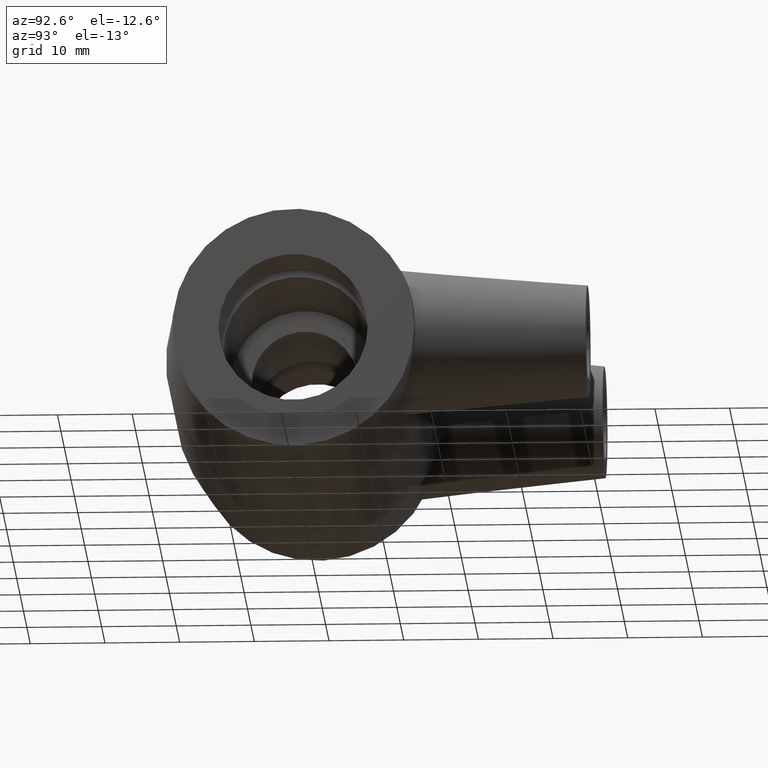
[diagram: clean part render]
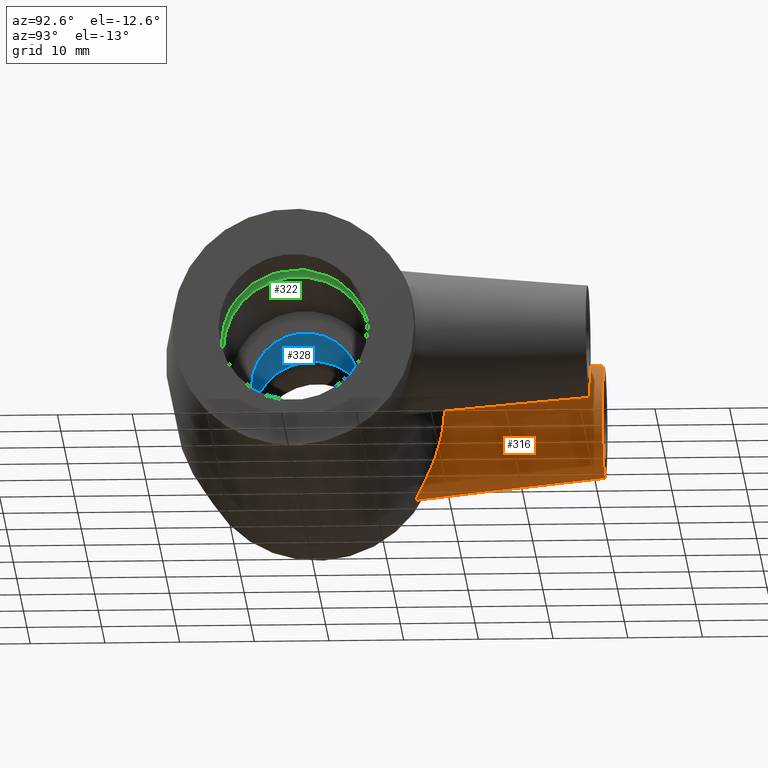
[diagram: same view with three faces highlighted in distinct colors, each labeled with its STEP entity id]
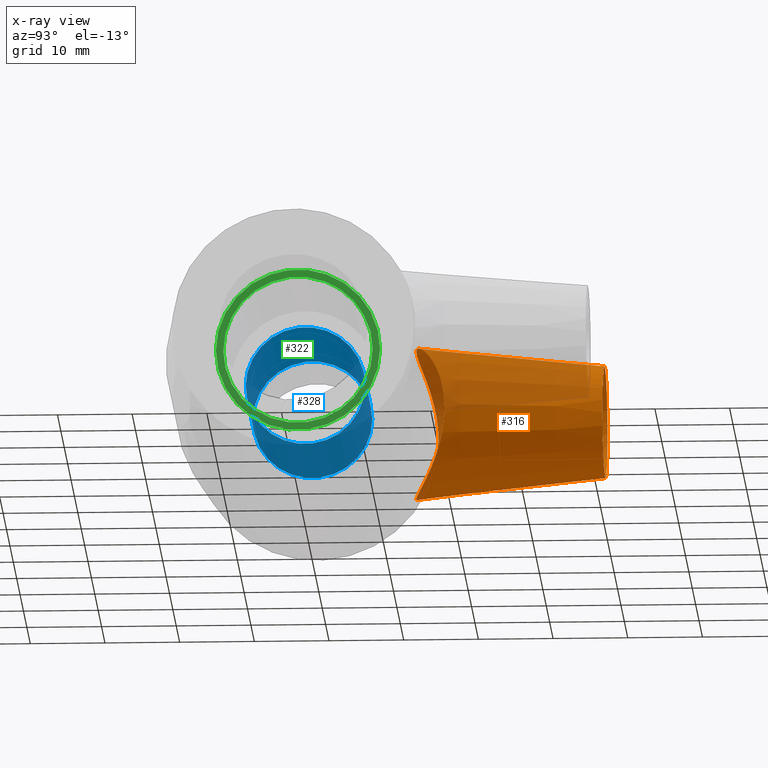
[diagram: x-ray of the same camera — body ghosted, the three highlighted faces saturated]
A machine part, auxiliary view with three faces highlighted in distinct colors.
The next image is the same camera in x-ray (body ghosted, the three faces saturated) — at least one of them is partly hidden behind the body in this view.
Their STEP definitions:

[orange] entity #316 — the highlighted conical surface has half-angle 6 deg.
#16=B_SPLINE_CURVE_WITH_KNOTS('',3,(#579,#580,#581,#582,#583,#584,#585,
#586,#587,#588,#589,#590,#591,#592,#593,#594,#595,#596,#597,#598,#599,#600,
#601,#602,#603,#604,#605,#606,#607,#608,#609,#610,#611,#612,#613,#614,#615,
#616),.UNSPECIFIED.,.T.,.F.,(4,2,2,2,2,2,2,2,2,2,2,2,2,2,2,2,2,2,4),(0.,
0.185299201020155,0.370598402040309,0.741196804080619,1.11369570266722,
1.48619460125382,1.85869349984042,2.23119239842702,2.60179080046733,2.78709000148748,
2.97238920250763,3.3877355594393,3.80308191637097,4.19848920143802,4.59389648650506,
4.98930377157211,5.38471105663916,5.80005741357083,6.2154037705025),
 .UNSPECIFIED.);
#18=CONICAL_SURFACE('',#357,7.5,6.);
#33=FACE_BOUND('',#113,.T.);
#74=FACE_OUTER_BOUND('',#112,.T.);
#112=EDGE_LOOP('',(#255));
#113=EDGE_LOOP('',(#256));
#159=CIRCLE('',#356,7.5);
#187=VERTEX_POINT('',#575);
#188=VERTEX_POINT('',#578);
#216=EDGE_CURVE('',#187,#187,#159,.T.);
#217=EDGE_CURVE('',#188,#188,#16,.T.);
#255=ORIENTED_EDGE('',*,*,#216,.T.);
#256=ORIENTED_EDGE('',*,*,#217,.F.);
#316=ADVANCED_FACE('',(#74,#33),#18,.T.);
#356=AXIS2_PLACEMENT_3D('',#576,#434,#435);
#357=AXIS2_PLACEMENT_3D('',#577,#436,#437);
#434=DIRECTION('center_axis',(0.,-1.,0.));
#435=DIRECTION('ref_axis',(1.,0.,0.));
#436=DIRECTION('center_axis',(0.,-1.,0.));
#437=DIRECTION('ref_axis',(1.,0.,0.));
#575=CARTESIAN_POINT('',(-32.35,39.,9.18485099360515E-16));
#576=CARTESIAN_POINT('Origin',(-24.85,39.,0.));
#577=CARTESIAN_POINT('Origin',(-24.85,39.,0.));
#578=CARTESIAN_POINT('',(-25.4400773461064,13.7225999164325,10.139606456612));
#579=CARTESIAN_POINT('Ctrl Pts',(-25.4400773461065,13.7225999164326,10.139606456612));
#580=CARTESIAN_POINT('Ctrl Pts',(-26.0554848061283,13.6801755537237,10.1082591649427));
#581=CARTESIAN_POINT('Ctrl Pts',(-26.6836558126022,13.6833117082209,10.0143419986184));
#582=CARTESIAN_POINT('Ctrl Pts',(-27.917326713401,13.7808855108945,9.69703784869612));
#583=CARTESIAN_POINT('Ctrl Pts',(-28.5228890839462,13.8749109819528,9.47376717065599));
#584=CARTESIAN_POINT('Ctrl Pts',(-30.2449859089782,14.2491836060499,8.63497623960071));
#585=CARTESIAN_POINT('Ctrl Pts',(-31.267289519206,14.6192269678355,7.84129932997885));
#586=CARTESIAN_POINT('Ctrl Pts',(-32.8714283514107,15.2890173803577,6.07675864335825));
#587=CARTESIAN_POINT('Ctrl Pts',(-33.5704214796696,15.6398730455991,4.97385128769273));
#588=CARTESIAN_POINT('Ctrl Pts',(-34.5051770921332,16.1304111960584,2.55707376897077));
#589=CARTESIAN_POINT('Ctrl Pts',(-34.7395254991271,16.2651835286462,1.24166299528867));
#590=CARTESIAN_POINT('Ctrl Pts',(-34.7395254991271,16.2651835286462,-1.24166299528866));
#591=CARTESIAN_POINT('Ctrl Pts',(-34.5051770921332,16.1304111960584,-2.55707376897077));
#592=CARTESIAN_POINT('Ctrl Pts',(-33.5704214796697,15.6398730455991,-4.97385128769272));
#593=CARTESIAN_POINT('Ctrl Pts',(-32.8714283514107,15.2890173803577,-6.07675864335825));
#594=CARTESIAN_POINT('Ctrl Pts',(-31.267289519206,14.6192269678355,-7.84129932997885));
#595=CARTESIAN_POINT('Ctrl Pts',(-30.2449859089782,14.2491836060499,-8.6349762396007));
#596=CARTESIAN_POINT('Ctrl Pts',(-28.5228890839462,13.8749109819528,-9.47376717065599));
#597=CARTESIAN_POINT('Ctrl Pts',(-27.917326713401,13.7808855108945,-9.69703784869612));
#598=CARTESIAN_POINT('Ctrl Pts',(-26.6836558126022,13.6833117082209,-10.0143419986184));
#599=CARTESIAN_POINT('Ctrl Pts',(-26.0554848061283,13.6801755537237,-10.1082591649427));
#600=CARTESIAN_POINT('Ctrl Pts',(-24.0606475097046,13.81769371284,-10.2098711060158));
#601=CARTESIAN_POINT('Ctrl Pts',(-22.6489616694074,14.1614685227023,-9.96355181723278));
#602=CARTESIAN_POINT('Ctrl Pts',(-20.1010772865265,15.0941052828797,-8.92144372205494));
#603=CARTESIAN_POINT('Ctrl Pts',(-18.959366888647,15.6672467928001,-8.12512863328076));
#604=CARTESIAN_POINT('Ctrl Pts',(-17.1958170252626,16.6363915937125,-6.32118237547666));
#605=CARTESIAN_POINT('Ctrl Pts',(-16.4332411469822,17.1081087825257,-5.20036181057903));
#606=CARTESIAN_POINT('Ctrl Pts',(-15.4029047925954,17.7651306421856,-2.69984050890149));
#607=CARTESIAN_POINT('Ctrl Pts',(-15.1370717220362,17.9453938523969,-1.31802428355683));
#608=CARTESIAN_POINT('Ctrl Pts',(-15.1370717220362,17.9453938523969,1.31802428355682));
#609=CARTESIAN_POINT('Ctrl Pts',(-15.4029047925954,17.7651306421856,2.69984050890149));
#610=CARTESIAN_POINT('Ctrl Pts',(-16.4332411469822,17.1081087825257,5.20036181057902));
#611=CARTESIAN_POINT('Ctrl Pts',(-17.1958170252626,16.6363915937125,6.32118237547666));
#612=CARTESIAN_POINT('Ctrl Pts',(-18.959366888647,15.6672467928001,8.12512863328075));
#613=CARTESIAN_POINT('Ctrl Pts',(-20.1010772865265,15.0941052828797,8.92144372205493));
#614=CARTESIAN_POINT('Ctrl Pts',(-22.6489616694074,14.1614685227023,9.96355181723278));
#615=CARTESIAN_POINT('Ctrl Pts',(-24.0606475097046,13.81769371284,10.2098711060158));
#616=CARTESIAN_POINT('Ctrl Pts',(-25.4400773461065,13.7225999164326,10.139606456612));

[blue] entity #328 — the highlighted cylindrical surface (bore or boss wall) has radius 8 mm, axis along (1, 0, 0).
#46=FACE_BOUND('',#138,.T.);
#61=CYLINDRICAL_SURFACE('',#381,8.);
#86=FACE_OUTER_BOUND('',#137,.T.);
#137=EDGE_LOOP('',(#280));
#138=EDGE_LOOP('',(#281));
#171=CIRCLE('',#380,7.99999999999999);
#172=CIRCLE('',#382,8.);
#200=VERTEX_POINT('',#650);
#201=VERTEX_POINT('',#653);
#229=EDGE_CURVE('',#200,#200,#171,.T.);
#230=EDGE_CURVE('',#201,#201,#172,.T.);
#280=ORIENTED_EDGE('',*,*,#230,.F.);
#281=ORIENTED_EDGE('',*,*,#229,.T.);
#328=ADVANCED_FACE('',(#86,#46),#61,.F.);
#380=AXIS2_PLACEMENT_3D('',#651,#482,#483);
#381=AXIS2_PLACEMENT_3D('',#652,#484,#485);
#382=AXIS2_PLACEMENT_3D('',#654,#486,#487);
#482=DIRECTION('center_axis',(1.,1.83697019872103E-16,0.));
#483=DIRECTION('ref_axis',(0.,0.,-1.));
#484=DIRECTION('center_axis',(1.,1.83697019872103E-16,0.));
#485=DIRECTION('ref_axis',(-1.96131485542617E-16,1.,0.));
#486=DIRECTION('center_axis',(1.,1.83697019872103E-16,0.));
#487=DIRECTION('ref_axis',(0.,0.,-1.));
#650=CARTESIAN_POINT('',(-0.500000000000003,8.,0.));
#651=CARTESIAN_POINT('Origin',(-0.500000000000003,6.4293956955236E-15,0.));
#652=CARTESIAN_POINT('Origin',(-11.,4.50057698686652E-15,0.));
#653=CARTESIAN_POINT('',(-21.5,8.,0.));
#654=CARTESIAN_POINT('Origin',(-21.5,2.57175827820944E-15,0.));

[green] entity #322 — the highlighted planar face has unit normal (1, 0, 0).
#40=FACE_BOUND('',#126,.T.);
#80=FACE_OUTER_BOUND('',#125,.T.);
#125=EDGE_LOOP('',(#268));
#126=EDGE_LOOP('',(#269));
#165=CIRCLE('',#368,10.9919306211268);
#166=CIRCLE('',#370,9.99999999999999);
#194=VERTEX_POINT('',#632);
#195=VERTEX_POINT('',#635);
#223=EDGE_CURVE('',#194,#194,#165,.T.);
#224=EDGE_CURVE('',#195,#195,#166,.T.);
#268=ORIENTED_EDGE('',*,*,#223,.T.);
#269=ORIENTED_EDGE('',*,*,#224,.F.);
#300=PLANE('',#369);
#322=ADVANCED_FACE('',(#80,#40),#300,.T.);
#368=AXIS2_PLACEMENT_3D('',#633,#458,#459);
#369=AXIS2_PLACEMENT_3D('',#634,#460,#461);
#370=AXIS2_PLACEMENT_3D('',#636,#462,#463);
#458=DIRECTION('center_axis',(1.,1.83697019872103E-16,0.));
#459=DIRECTION('ref_axis',(0.,0.,-1.));
#460=DIRECTION('center_axis',(1.,1.83697019872103E-16,0.));
#461=DIRECTION('ref_axis',(0.,0.,-1.));
#462=DIRECTION('center_axis',(1.,1.83697019872103E-16,0.));
#463=DIRECTION('ref_axis',(0.,0.,-1.));
#632=CARTESIAN_POINT('',(21.5,10.9919306211268,0.));
#633=CARTESIAN_POINT('Origin',(21.5,1.04707301327099E-14,0.));
#634=CARTESIAN_POINT('Origin',(21.5,10.,0.));
#635=CARTESIAN_POINT('',(21.5,10.,0.));
#636=CARTESIAN_POINT('Origin',(21.5,1.04707301327099E-14,0.));